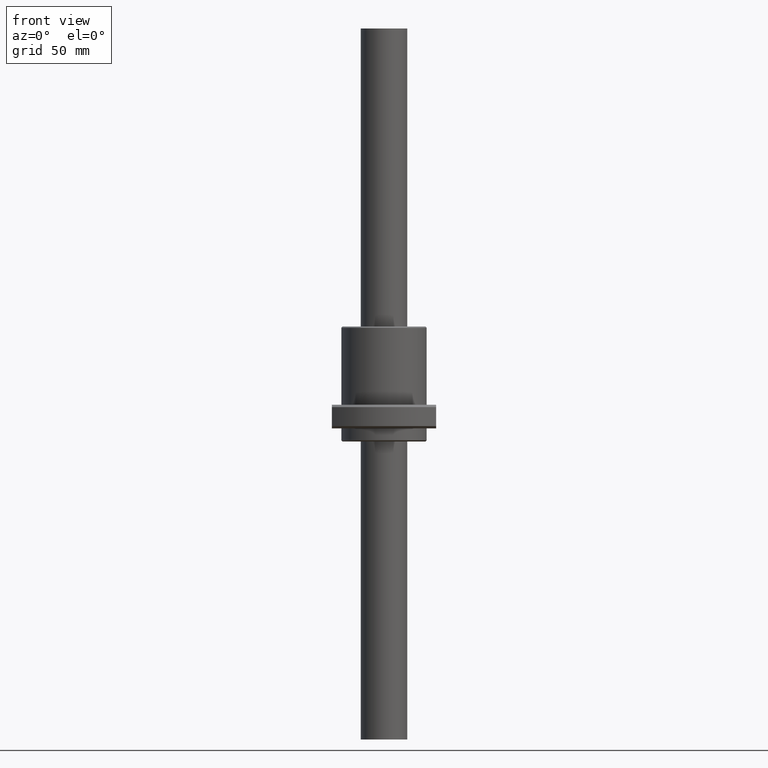
[diagram: clean part render]
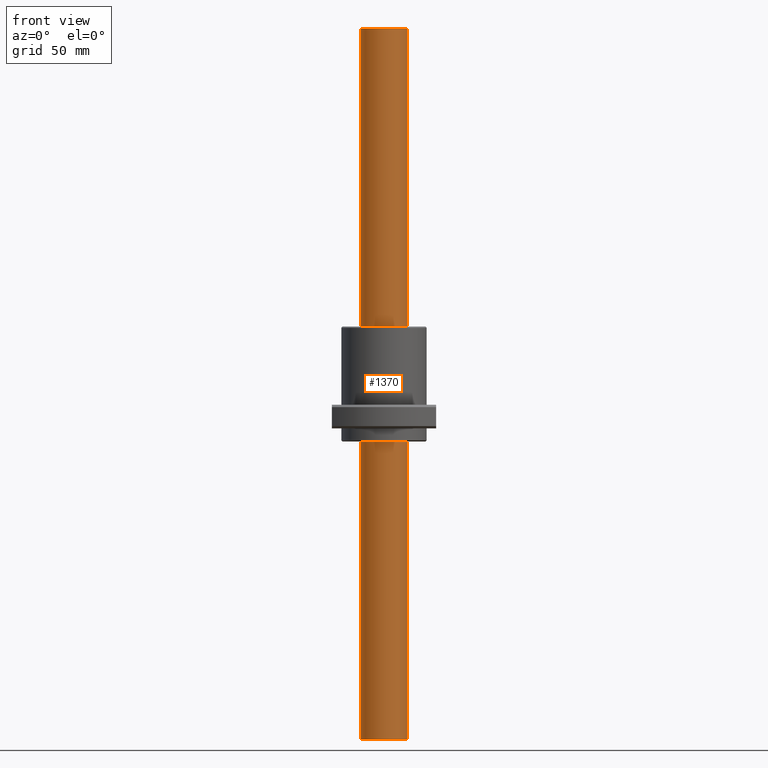
[diagram: same view with one face highlighted and labeled with its STEP entity id]
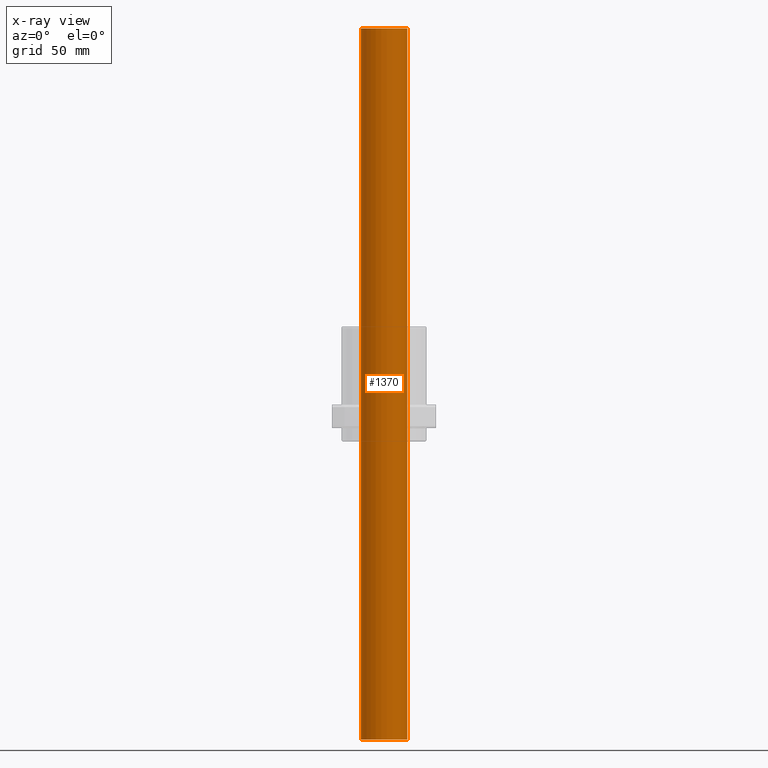
[diagram: x-ray of the same camera — body ghosted, the highlighted face saturated]
A machine part, front view. The second image highlights one B-rep face of the part: STEP entity #1370.
The next image is the same camera in x-ray: the body ghosted, the highlighted face saturated — about 0% of this face is hidden behind the body in this view.
In plain terms, the highlighted cylindrical surface (edge-blend (fillet) strip) has radius 9.8 mm, axis along (0, 0, 1).
Its self-contained STEP definition (entity closure, byte-faithful):
#101 = EDGE_CURVE ( 'NONE', #1476, #1403, #245, .T. ) ;
#174 = ORIENTED_EDGE ( 'NONE', *, *, #573, .F. ) ;
#245 = LINE ( 'NONE', #396, #1377 ) ;
#282 = AXIS2_PLACEMENT_3D ( 'NONE', #1368, #1367, #1365 ) ;
#365 = AXIS2_PLACEMENT_3D ( 'NONE', #839, #838, #833 ) ;
#396 = CARTESIAN_POINT ( 'NONE',  ( 9.800000000000000700, 0.0000000000000000000, -300.0000000000000000 ) ) ;
#431 = VECTOR ( 'NONE', #1144, 1000.000000000000000 ) ;
#487 = CIRCLE ( 'NONE', #1643, 9.800000000000000700 ) ;
#550 = CARTESIAN_POINT ( 'NONE',  ( -9.800000000000000700, 1.200153863164406300E-015, -300.0000000000000000 ) ) ;
#573 = EDGE_CURVE ( 'NONE', #1476, #1686, #487, .T. ) ;
#582 = CIRCLE ( 'NONE', #282, 9.800000000000000700 ) ;
#588 = DIRECTION ( 'NONE',  ( 0.0000000000000000000, 0.0000000000000000000, 1.000000000000000000 ) ) ;
#718 = CARTESIAN_POINT ( 'NONE',  ( 9.800000000000000700, 0.0000000000000000000, -300.0000000000000000 ) ) ;
#820 = CARTESIAN_POINT ( 'NONE',  ( 9.800000000000000700, 0.0000000000000000000, 0.0000000000000000000 ) ) ;
#833 = DIRECTION ( 'NONE',  ( 1.000000000000000000, 0.0000000000000000000, 0.0000000000000000000 ) ) ;
#838 = DIRECTION ( 'NONE',  ( 0.0000000000000000000, 0.0000000000000000000, 1.000000000000000000 ) ) ;
#839 = CARTESIAN_POINT ( 'NONE',  ( 0.0000000000000000000, 0.0000000000000000000, -300.0000000000000000 ) ) ;
#845 = CYLINDRICAL_SURFACE ( 'NONE', #365, 9.800000000000000700 ) ;
#883 = EDGE_CURVE ( 'NONE', #1230, #1403, #582, .T. ) ;
#897 = FACE_OUTER_BOUND ( 'NONE', #1317, .T. ) ;
#1031 = CARTESIAN_POINT ( 'NONE',  ( -9.800000000000000700, 1.200153863164406300E-015, 0.0000000000000000000 ) ) ;
#1137 = EDGE_CURVE ( 'NONE', #1686, #1230, #1165, .T. ) ;
#1144 = DIRECTION ( 'NONE',  ( 0.0000000000000000000, 0.0000000000000000000, 1.000000000000000000 ) ) ;
#1153 = CARTESIAN_POINT ( 'NONE',  ( -9.800000000000000700, 1.200153863164406300E-015, -300.0000000000000000 ) ) ;
#1165 = LINE ( 'NONE', #1153, #431 ) ;
#1188 = ORIENTED_EDGE ( 'NONE', *, *, #1137, .F. ) ;
#1229 = ORIENTED_EDGE ( 'NONE', *, *, #101, .T. ) ;
#1230 = VERTEX_POINT ( 'NONE', #1031 ) ;
#1317 = EDGE_LOOP ( 'NONE', ( #1188, #174, #1229, #1724 ) ) ;
#1365 = DIRECTION ( 'NONE',  ( 1.000000000000000000, 0.0000000000000000000, 0.0000000000000000000 ) ) ;
#1367 = DIRECTION ( 'NONE',  ( 0.0000000000000000000, 0.0000000000000000000, 1.000000000000000000 ) ) ;
#1368 = CARTESIAN_POINT ( 'NONE',  ( 0.0000000000000000000, 0.0000000000000000000, 0.0000000000000000000 ) ) ;
#1370 = ADVANCED_FACE ( 'NONE', ( #897 ), #845, .T. ) ;
#1377 = VECTOR ( 'NONE', #588, 1000.000000000000000 ) ;
#1403 = VERTEX_POINT ( 'NONE', #820 ) ;
#1476 = VERTEX_POINT ( 'NONE', #718 ) ;
#1643 = AXIS2_PLACEMENT_3D ( 'NONE', #1743, #1741, #1738 ) ;
#1686 = VERTEX_POINT ( 'NONE', #550 ) ;
#1724 = ORIENTED_EDGE ( 'NONE', *, *, #883, .F. ) ;
#1738 = DIRECTION ( 'NONE',  ( 1.000000000000000000, 0.0000000000000000000, 0.0000000000000000000 ) ) ;
#1741 = DIRECTION ( 'NONE',  ( -0.0000000000000000000, -0.0000000000000000000, -1.000000000000000000 ) ) ;
#1743 = CARTESIAN_POINT ( 'NONE',  ( 0.0000000000000000000, 0.0000000000000000000, -300.0000000000000000 ) ) ;